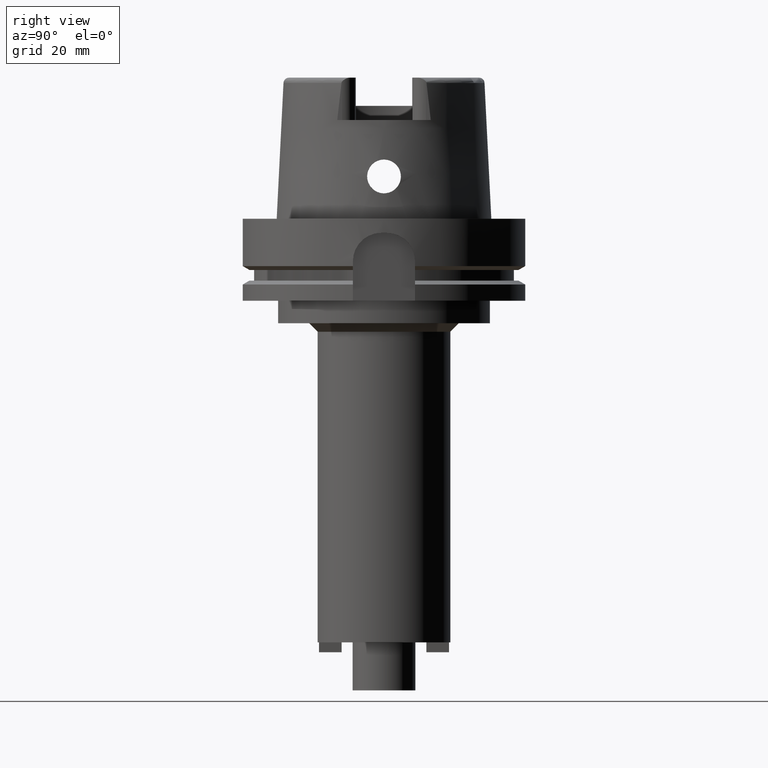
[diagram: clean part render]
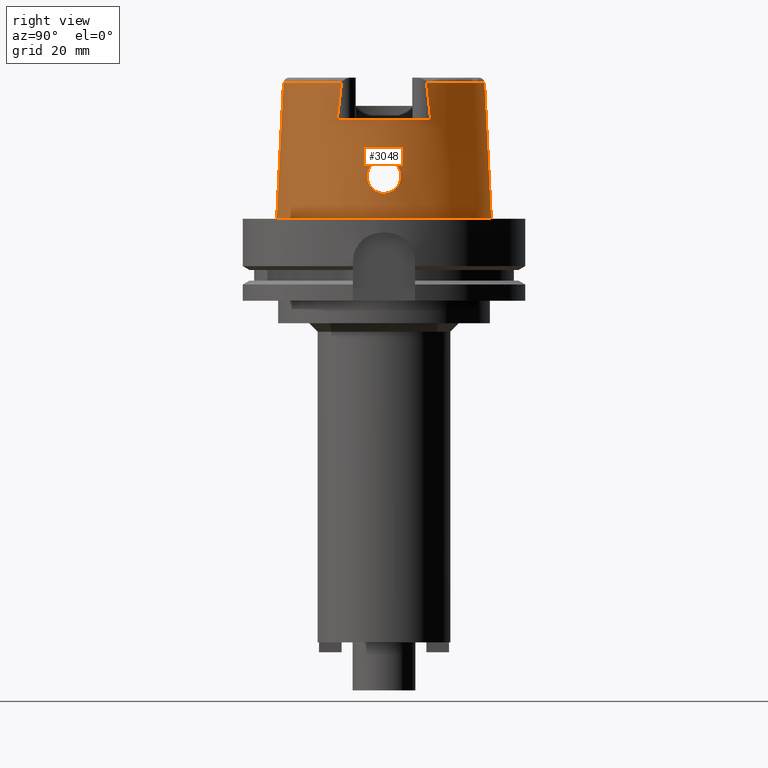
[diagram: same view with one face highlighted and labeled with its STEP entity id]
A machine part, right view. The second image highlights one B-rep face of the part: STEP entity #3048.
In plain terms, the highlighted conical surface has half-angle 2.862 deg.
Its self-contained STEP definition (entity closure, byte-faithful):
#268=CARTESIAN_POINT('',(3.225000552017E1,-1.506439831629E1,4.810004146423E1));
#273=CARTESIAN_POINT('',(0.E0,0.E0,4.809987853799E1));
#274=DIRECTION('',(0.E0,0.E0,-1.E0));
#275=DIRECTION('',(9.060280460805E-1,-4.232176505246E-1,0.E0));
#276=AXIS2_PLACEMENT_3D('',#273,#274,#275);
#299=DIRECTION('',(5.154182075151E-5,-4.993927430816E-2,-9.987522546783E-1));
#300=VECTOR('',#299,4.815996991514E1);
#301=CARTESIAN_POINT('',(-2.482252536761E-3,-3.559494263425E1,
4.809987853799E1));
#302=LINE('',#301,#300);
#354=CARTESIAN_POINT('',(3.224999527489E1,1.655287543599E1,3.5E1));
#355=CARTESIAN_POINT('',(3.224999527489E1,1.639226210430E1,3.646677430492E1));
#356=CARTESIAN_POINT('',(3.224999958003E1,1.606837255816E1,3.939292733808E1));
#357=CARTESIAN_POINT('',(3.225000855756E1,1.557203228287E1,4.375938279224E1));
#358=CARTESIAN_POINT('',(3.224998031234E1,1.523513274107E1,4.665592183689E1));
#359=CARTESIAN_POINT('',(3.224998031234E1,1.506460254333E1,4.809931727146E1));
#364=DIRECTION('',(-5.154182075159E-5,4.993927430816E-2,-9.987522546783E-1));
#365=VECTOR('',#364,4.815996991514E1);
#366=CARTESIAN_POINT('',(2.482252536765E-3,3.559494263425E1,4.809987853799E1));
#367=LINE('',#366,#365);
#371=CARTESIAN_POINT('',(3.225000552017E1,-1.506439831629E1,4.810004146423E1));
#372=CARTESIAN_POINT('',(3.225000552017E1,-1.523503287391E1,4.665577823183E1));
#373=CARTESIAN_POINT('',(3.225000026293E1,-1.557219473722E1,4.376011571737E1));
#374=CARTESIAN_POINT('',(3.224999079948E1,-1.606856473294E1,3.939344262535E1));
#375=CARTESIAN_POINT('',(3.225002129259E1,-1.639212166417E1,3.646699412941E1));
#376=CARTESIAN_POINT('',(3.225002129259E1,-1.655276054267E1,3.5E1));
#381=CARTESIAN_POINT('',(3.694998175923E1,-1.394597051989E-13,2.1E1));
#382=CARTESIAN_POINT('',(3.694998175923E1,-5.232796476324E-1,2.1E1));
#383=CARTESIAN_POINT('',(3.693412451708E1,-1.570862445408E0,2.086225708507E1));
#384=CARTESIAN_POINT('',(3.687089168251E1,-3.037985162706E0,2.025450867258E1));
#385=CARTESIAN_POINT('',(3.679106322301E1,-4.299521300470E0,1.928372310297E1));
#386=CARTESIAN_POINT('',(3.672648493601E1,-5.261385331619E0,1.802476333266E1));
#387=CARTESIAN_POINT('',(3.670709915617E1,-5.863699684655E0,1.656194855672E1));
#388=CARTESIAN_POINT('',(3.675206998940E1,-6.067618693294E0,1.500575399524E1));
#389=CARTESIAN_POINT('',(3.686472239066E1,-5.865813889967E0,1.344400023780E1));
#390=CARTESIAN_POINT('',(3.703183569226E1,-5.262899054320E0,1.197739341384E1));
#391=CARTESIAN_POINT('',(3.722263476662E1,-4.298753038675E0,1.071457850412E1));
#392=CARTESIAN_POINT('',(3.739912179586E1,-3.029437107769E0,9.739991679035E0));
#393=CARTESIAN_POINT('',(3.752122395427E1,-1.560911331145E0,9.135510422852E0));
#394=CARTESIAN_POINT('',(3.755000165825E1,-5.189915319811E-1,9.E0));
#395=CARTESIAN_POINT('',(3.755000165825E1,0.E0,9.E0));
#400=CARTESIAN_POINT('',(3.755000165825E1,0.E0,9.E0));
#401=CARTESIAN_POINT('',(3.755000165825E1,5.185561177521E-1,9.E0));
#402=CARTESIAN_POINT('',(3.752119036254E1,1.556718141254E0,9.135734795349E0));
#403=CARTESIAN_POINT('',(3.740130512576E1,3.006807452991E0,9.729111708313E0));
#404=CARTESIAN_POINT('',(3.722726155568E1,4.270797774920E0,1.068749119807E1));
#405=CARTESIAN_POINT('',(3.703605178417E1,5.245416469878E0,1.194521733837E1));
#406=CARTESIAN_POINT('',(3.686626076426E1,5.862503191766E0,1.342476677092E1));
#407=CARTESIAN_POINT('',(3.675188526565E1,6.068956978514E0,1.500491609005E1));
#408=CARTESIAN_POINT('',(3.670699302400E1,5.861665663260E0,1.657082095694E1));
#409=CARTESIAN_POINT('',(3.672675906323E1,5.257531930154E0,1.802995067478E1));
#410=CARTESIAN_POINT('',(3.679087825042E1,4.302005569086E0,1.928009994878E1));
#411=CARTESIAN_POINT('',(3.687048853119E1,3.045268979438E0,2.025039558952E1));
#412=CARTESIAN_POINT('',(3.693403425516E1,1.575201331060E0,2.086150991339E1));
#413=CARTESIAN_POINT('',(3.694998175923E1,5.250089514047E-1,2.1E1));
#414=CARTESIAN_POINT('',(3.694998175923E1,-1.394597051989E-13,2.1E1));
#449=CARTESIAN_POINT('',(0.E0,0.E0,3.5E1));
#450=DIRECTION('',(0.E0,0.E0,-1.E0));
#451=DIRECTION('',(8.896561898443E-1,4.566309931135E-1,0.E0));
#452=AXIS2_PLACEMENT_3D('',#449,#450,#451);
#2063=CARTESIAN_POINT('',(0.E0,0.E0,1.023181539495E-12));
#2064=DIRECTION('',(0.E0,0.E0,1.E0));
#2065=DIRECTION('',(0.E0,-1.E0,0.E0));
#2066=AXIS2_PLACEMENT_3D('',#2063,#2064,#2065);
#2415=CARTESIAN_POINT('',(0.E0,0.E0,4.809987853799E1));
#2416=DIRECTION('',(0.E0,0.E0,-1.E0));
#2417=DIRECTION('',(0.E0,1.E0,0.E0));
#2418=AXIS2_PLACEMENT_3D('',#2415,#2416,#2417);
#2501=CARTESIAN_POINT('',(0.E0,3.559494289391E1,4.809987853799E1));
#2502=VERTEX_POINT('',#2501);
#2503=CARTESIAN_POINT('',(3.224994093704E1,1.506456999646E1,4.809987853799E1));
#2504=VERTEX_POINT('',#2503);
#2508=VERTEX_POINT('',#268);
#2509=CARTESIAN_POINT('',(1.065814103640E-14,-3.559494289391E1,
4.809987853799E1));
#2510=VERTEX_POINT('',#2509);
#2511=CARTESIAN_POINT('',(0.E0,-3.800001658252E1,6.821210263297E-13));
#2512=VERTEX_POINT('',#2511);
#2513=CARTESIAN_POINT('',(0.E0,3.800001658252E1,1.023181539495E-12));
#2514=VERTEX_POINT('',#2513);
#2517=CARTESIAN_POINT('',(3.225E1,1.655285457013E1,3.5E1));
#2518=CARTESIAN_POINT('',(3.225E1,-1.655285457013E1,3.5E1));
#2519=VERTEX_POINT('',#2517);
#2520=VERTEX_POINT('',#2518);
#2521=VERTEX_POINT('',#381);
#2522=VERTEX_POINT('',#395);
#3022=CARTESIAN_POINT('',(0.E0,0.E0,2.404993926900E1));
#3023=DIRECTION('',(0.E0,0.E0,-1.E0));
#3024=DIRECTION('',(0.E0,-1.E0,0.E0));
#3025=AXIS2_PLACEMENT_3D('',#3022,#3023,#3024);
#3026=CONICAL_SURFACE('',#3025,3.679747973821E1,2.8625E0);
#3028=ORIENTED_EDGE('',*,*,#3027,.F.);
#3030=ORIENTED_EDGE('',*,*,#3029,.T.);
#3032=ORIENTED_EDGE('',*,*,#3031,.F.);
#3033=ORIENTED_EDGE('',*,*,#3007,.T.);
#3035=ORIENTED_EDGE('',*,*,#3034,.F.);
#3036=ORIENTED_EDGE('',*,*,#3003,.F.);
#3037=ORIENTED_EDGE('',*,*,#2975,.F.);
#3039=ORIENTED_EDGE('',*,*,#3038,.T.);
#3040=EDGE_LOOP('',(#3028,#3030,#3032,#3033,#3035,#3036,#3037,#3039));
#3041=FACE_OUTER_BOUND('',#3040,.F.);
#3043=ORIENTED_EDGE('',*,*,#3042,.T.);
#3045=ORIENTED_EDGE('',*,*,#3044,.T.);
#3046=EDGE_LOOP('',(#3043,#3045));
#3047=FACE_BOUND('',#3046,.F.);
#277=CIRCLE('',#276,3.559494289391E1);
#360=B_SPLINE_CURVE_WITH_KNOTS('',3,(#354,#355,#356,#357,#358,#359),
.UNSPECIFIED.,.F.,.F.,(4,1,1,4),(0.E0,3.333333333333E-1,6.666666666667E-1,1.E0),
.UNSPECIFIED.);
#377=B_SPLINE_CURVE_WITH_KNOTS('',3,(#371,#372,#373,#374,#375,#376),
.UNSPECIFIED.,.F.,.F.,(4,1,1,4),(0.E0,3.333333333333E-1,6.666666666667E-1,1.E0),
.UNSPECIFIED.);
#396=B_SPLINE_CURVE_WITH_KNOTS('',3,(#381,#382,#383,#384,#385,#386,#387,#388,
#389,#390,#391,#392,#393,#394,#395),.UNSPECIFIED.,.F.,.F.,(4,1,1,1,1,1,1,1,1,1,
1,1,4),(0.E0,8.333333333333E-2,1.666666666667E-1,2.5E-1,3.333333333333E-1,
4.166666666667E-1,5.E-1,5.833333333333E-1,6.666666666667E-1,7.5E-1,
8.333333333333E-1,9.166666666667E-1,1.E0),.UNSPECIFIED.);
#415=B_SPLINE_CURVE_WITH_KNOTS('',3,(#400,#401,#402,#403,#404,#405,#406,#407,
#408,#409,#410,#411,#412,#413,#414),.UNSPECIFIED.,.F.,.F.,(4,1,1,1,1,1,1,1,1,1,
1,1,4),(0.E0,8.333333333333E-2,1.666666666667E-1,2.5E-1,3.333333333333E-1,
4.166666666667E-1,5.E-1,5.833333333333E-1,6.666666666667E-1,7.5E-1,
8.333333333333E-1,9.166666666667E-1,1.E0),.UNSPECIFIED.);
#453=CIRCLE('',#452,3.624995854370E1);
#2067=CIRCLE('',#2066,3.800001658252E1);
#2419=CIRCLE('',#2418,3.559494289391E1);
#2975=EDGE_CURVE('',#2508,#2510,#277,.T.);
#3003=EDGE_CURVE('',#2510,#2512,#302,.T.);
#3007=EDGE_CURVE('',#2502,#2514,#367,.T.);
#3027=EDGE_CURVE('',#2519,#2520,#453,.T.);
#3029=EDGE_CURVE('',#2519,#2504,#360,.T.);
#3031=EDGE_CURVE('',#2502,#2504,#2419,.T.);
#3034=EDGE_CURVE('',#2512,#2514,#2067,.T.);
#3038=EDGE_CURVE('',#2508,#2520,#377,.T.);
#3042=EDGE_CURVE('',#2521,#2522,#396,.T.);
#3044=EDGE_CURVE('',#2522,#2521,#415,.T.);
#3048=ADVANCED_FACE('',(#3041,#3047),#3026,.T.);